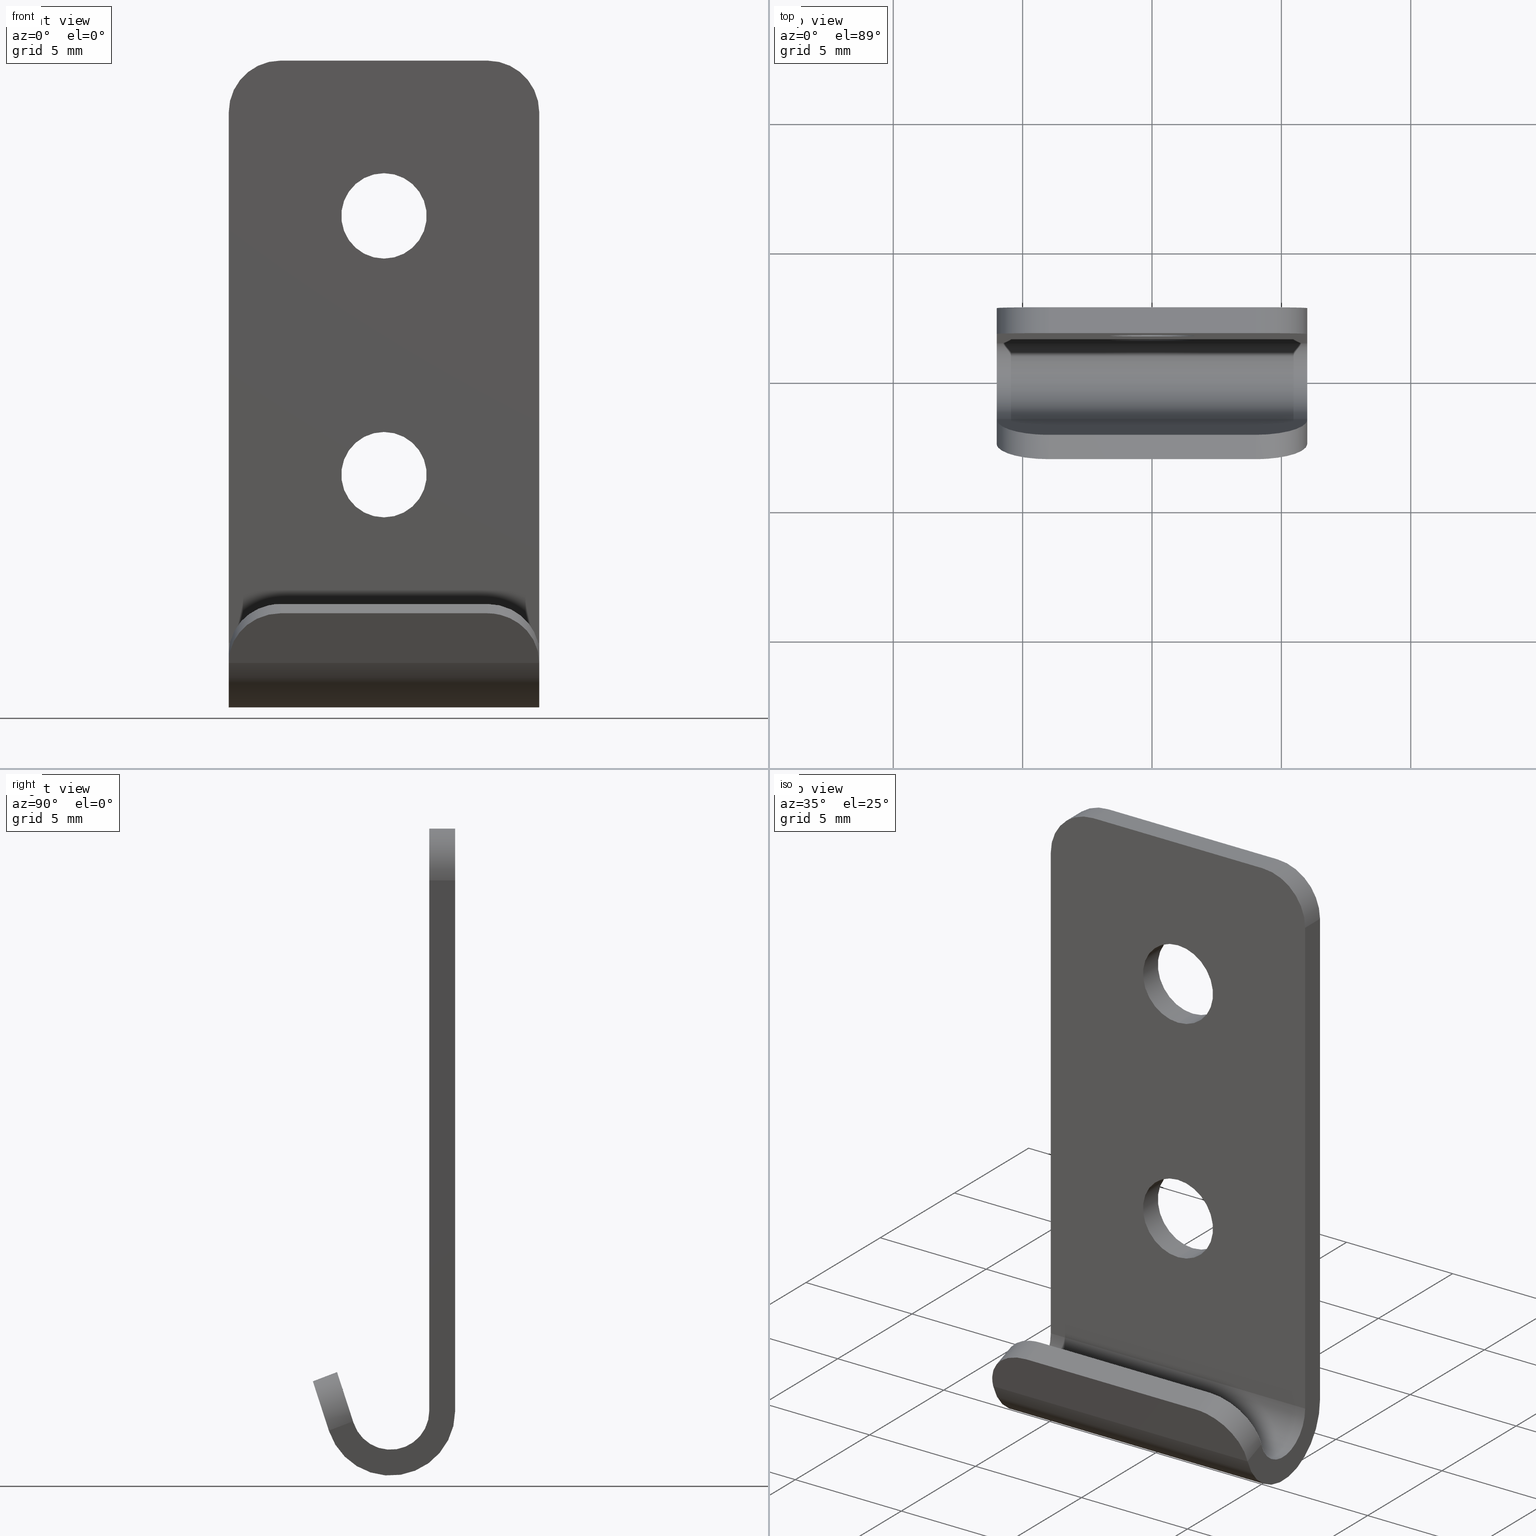
[diagram: canonical four-view strip — front | top / right | iso, engineering-drawing reading convention]
A machine part, canonical four-view strip (front | top / right | iso — engineering-drawing reading convention). The complete STEP part file that produces these views, byte-faithful:
ISO-10303-21;
HEADER;

FILE_DESCRIPTION( (''), '2;1');
FILE_NAME ('PC3117.7224.TL_446SUS_K_22877.stp','2025-12-12T13:10:36',(''),(''),'spGate 20.6.3 (****-****-****-****)','','');

FILE_SCHEMA (('AUTOMOTIVE_DESIGN'));
ENDSEC;

DATA;
#10=(GEOMETRIC_REPRESENTATION_CONTEXT(3) GLOBAL_UNCERTAINTY_ASSIGNED_CONTEXT((#11)) GLOBAL_UNIT_ASSIGNED_CONTEXT((#12,#13,#14)) REPRESENTATION_CONTEXT('ID1','3D'));
#11=UNCERTAINTY_MEASURE_WITH_UNIT(LENGTH_MEASURE(0.01),#15,'DISTANCE_ACCURACY_VALUE','Maximum model space distance between geometric entities at asserted connectivities');
#12=(NAMED_UNIT(*) SI_UNIT($,.STERADIAN.) SOLID_ANGLE_UNIT());
#13=(CONVERSION_BASED_UNIT('DEGREE',#16) NAMED_UNIT(#17) PLANE_ANGLE_UNIT());
#14=(LENGTH_UNIT() NAMED_UNIT(*) SI_UNIT(.MILLI.,.METRE.));
#15=(LENGTH_UNIT() NAMED_UNIT(*) SI_UNIT(.MILLI.,.METRE.));
#16=PLANE_ANGLE_MEASURE_WITH_UNIT(PLANE_ANGLE_MEASURE(0.01745329252),#18);
#17=DIMENSIONAL_EXPONENTS(0.0,0.0,0.0,0.0,0.0,0.0,0.0);
#18=(NAMED_UNIT(*) PLANE_ANGLE_UNIT() SI_UNIT($,.RADIAN.));
#19=MANIFOLD_SOLID_BREP('TL_446SUS_K',#31);
#20=ADVANCED_BREP_SHAPE_REPRESENTATION('',(#19),#10);
#21=APPLICATION_CONTEXT('');
#22=APPLICATION_PROTOCOL_DEFINITION('International Standard','automotive_design',1999,#21);
#23=PRODUCT_DEFINITION_CONTEXT('',#21,'design');
#24=PRODUCT_CONTEXT('',#21,'mechanical');
#25=PRODUCT('','','',(#24));
#26=PRODUCT_DEFINITION_FORMATION_WITH_SPECIFIED_SOURCE('','',#25,.NOT_KNOWN.);
#27=PRODUCT_RELATED_PRODUCT_CATEGORY('tool','tool',(#25));
#28=PRODUCT_DEFINITION('','',#26,#23);
#29=PRODUCT_DEFINITION_SHAPE('','',#28);
#30=SHAPE_DEFINITION_REPRESENTATION(#29,#20);
#31=CLOSED_SHELL('',(#40,#41,#42,#43,#44,#45,#46,#47,#48,#49,#50,#51,#52,#53,#54,#55,#56,#57));
#32=COLOUR_RGB('',0.00000000000E+00,0.00000000000E+00,0.00000000000E+00);
#33=FILL_AREA_STYLE_COLOUR('',#32);
#34=FILL_AREA_STYLE('',(#33));
#35=SURFACE_STYLE_FILL_AREA(#34);
#36=SURFACE_SIDE_STYLE('',(#35));
#37=SURFACE_STYLE_USAGE(.BOTH.,#36);
#38=PRESENTATION_STYLE_ASSIGNMENT((#37));
#39=STYLED_ITEM('',(#38),#19);
#40=ADVANCED_FACE('',(#59),#58,.T.);
#41=ADVANCED_FACE('',(#69),#68,.T.);
#42=ADVANCED_FACE('',(#79),#78,.F.);
#43=ADVANCED_FACE('',(#89),#88,.F.);
#44=ADVANCED_FACE('',(#99),#98,.F.);
#45=ADVANCED_FACE('',(#109),#108,.T.);
#46=ADVANCED_FACE('',(#119),#118,.F.);
#47=ADVANCED_FACE('',(#129),#128,.F.);
#48=ADVANCED_FACE('',(#139,#140,#141),#138,.F.);
#49=ADVANCED_FACE('',(#151),#150,.F.);
#50=ADVANCED_FACE('',(#161,#162,#163),#160,.F.);
#51=ADVANCED_FACE('',(#173),#172,.T.);
#52=ADVANCED_FACE('',(#183),#182,.T.);
#53=ADVANCED_FACE('',(#193),#192,.T.);
#54=ADVANCED_FACE('',(#203),#202,.F.);
#55=ADVANCED_FACE('',(#213),#212,.F.);
#56=ADVANCED_FACE('',(#223),#222,.F.);
#57=ADVANCED_FACE('',(#233),#232,.F.);
#58=CYLINDRICAL_SURFACE('',#245,2.00000000000E+00);
#59=FACE_OUTER_BOUND('',#246,.T.);
#60=COLOUR_RGB('',1.00000000000E+00,1.00000000000E+00,1.00000000000E+00);
#61=FILL_AREA_STYLE_COLOUR('',#60);
#62=FILL_AREA_STYLE('',(#61));
#63=SURFACE_STYLE_FILL_AREA(#62);
#64=SURFACE_SIDE_STYLE('',(#63));
#65=SURFACE_STYLE_USAGE(.BOTH.,#64);
#66=PRESENTATION_STYLE_ASSIGNMENT((#65));
#67=STYLED_ITEM('',(#66),#40);
#68=CYLINDRICAL_SURFACE('',#250,2.00000000000E+00);
#69=FACE_OUTER_BOUND('',#251,.T.);
#70=COLOUR_RGB('',1.00000000000E+00,1.00000000000E+00,1.00000000000E+00);
#71=FILL_AREA_STYLE_COLOUR('',#70);
#72=FILL_AREA_STYLE('',(#71));
#73=SURFACE_STYLE_FILL_AREA(#72);
#74=SURFACE_SIDE_STYLE('',(#73));
#75=SURFACE_STYLE_USAGE(.BOTH.,#74);
#76=PRESENTATION_STYLE_ASSIGNMENT((#75));
#77=STYLED_ITEM('',(#76),#41);
#78=PLANE('',#255);
#79=FACE_OUTER_BOUND('',#256,.T.);
#80=COLOUR_RGB('',1.00000000000E+00,1.00000000000E+00,1.00000000000E+00);
#81=FILL_AREA_STYLE_COLOUR('',#80);
#82=FILL_AREA_STYLE('',(#81));
#83=SURFACE_STYLE_FILL_AREA(#82);
#84=SURFACE_SIDE_STYLE('',(#83));
#85=SURFACE_STYLE_USAGE(.BOTH.,#84);
#86=PRESENTATION_STYLE_ASSIGNMENT((#85));
#87=STYLED_ITEM('',(#86),#42);
#88=PLANE('',#260);
#89=FACE_OUTER_BOUND('',#261,.T.);
#90=COLOUR_RGB('',1.00000000000E+00,1.00000000000E+00,1.00000000000E+00);
#91=FILL_AREA_STYLE_COLOUR('',#90);
#92=FILL_AREA_STYLE('',(#91));
#93=SURFACE_STYLE_FILL_AREA(#92);
#94=SURFACE_SIDE_STYLE('',(#93));
#95=SURFACE_STYLE_USAGE(.BOTH.,#94);
#96=PRESENTATION_STYLE_ASSIGNMENT((#95));
#97=STYLED_ITEM('',(#96),#43);
#98=PLANE('',#265);
#99=FACE_OUTER_BOUND('',#266,.T.);
#100=COLOUR_RGB('',1.00000000000E+00,1.00000000000E+00,1.00000000000E+00);
#101=FILL_AREA_STYLE_COLOUR('',#100);
#102=FILL_AREA_STYLE('',(#101));
#103=SURFACE_STYLE_FILL_AREA(#102);
#104=SURFACE_SIDE_STYLE('',(#103));
#105=SURFACE_STYLE_USAGE(.BOTH.,#104);
#106=PRESENTATION_STYLE_ASSIGNMENT((#105));
#107=STYLED_ITEM('',(#106),#44);
#108=PLANE('',#270);
#109=FACE_OUTER_BOUND('',#271,.T.);
#110=COLOUR_RGB('',1.00000000000E+00,1.00000000000E+00,1.00000000000E+00);
#111=FILL_AREA_STYLE_COLOUR('',#110);
#112=FILL_AREA_STYLE('',(#111));
#113=SURFACE_STYLE_FILL_AREA(#112);
#114=SURFACE_SIDE_STYLE('',(#113));
#115=SURFACE_STYLE_USAGE(.BOTH.,#114);
#116=PRESENTATION_STYLE_ASSIGNMENT((#115));
#117=STYLED_ITEM('',(#116),#45);
#118=PLANE('',#275);
#119=FACE_OUTER_BOUND('',#276,.T.);
#120=COLOUR_RGB('',1.00000000000E+00,1.00000000000E+00,1.00000000000E+00);
#121=FILL_AREA_STYLE_COLOUR('',#120);
#122=FILL_AREA_STYLE('',(#121));
#123=SURFACE_STYLE_FILL_AREA(#122);
#124=SURFACE_SIDE_STYLE('',(#123));
#125=SURFACE_STYLE_USAGE(.BOTH.,#124);
#126=PRESENTATION_STYLE_ASSIGNMENT((#125));
#127=STYLED_ITEM('',(#126),#46);
#128=CYLINDRICAL_SURFACE('',#280,1.50000000000E+00);
#129=FACE_OUTER_BOUND('',#281,.T.);
#130=COLOUR_RGB('',1.00000000000E+00,1.00000000000E+00,1.00000000000E+00);
#131=FILL_AREA_STYLE_COLOUR('',#130);
#132=FILL_AREA_STYLE('',(#131));
#133=SURFACE_STYLE_FILL_AREA(#132);
#134=SURFACE_SIDE_STYLE('',(#133));
#135=SURFACE_STYLE_USAGE(.BOTH.,#134);
#136=PRESENTATION_STYLE_ASSIGNMENT((#135));
#137=STYLED_ITEM('',(#136),#47);
#138=PLANE('',#285);
#139=FACE_OUTER_BOUND('',#286,.T.);
#140=FACE_BOUND('',#287,.T.);
#141=FACE_BOUND('',#288,.T.);
#142=COLOUR_RGB('',1.00000000000E+00,1.00000000000E+00,1.00000000000E+00);
#143=FILL_AREA_STYLE_COLOUR('',#142);
#144=FILL_AREA_STYLE('',(#143));
#145=SURFACE_STYLE_FILL_AREA(#144);
#146=SURFACE_SIDE_STYLE('',(#145));
#147=SURFACE_STYLE_USAGE(.BOTH.,#146);
#148=PRESENTATION_STYLE_ASSIGNMENT((#147));
#149=STYLED_ITEM('',(#148),#48);
#150=PLANE('',#292);
#151=FACE_OUTER_BOUND('',#293,.T.);
#152=COLOUR_RGB('',1.00000000000E+00,1.00000000000E+00,1.00000000000E+00);
#153=FILL_AREA_STYLE_COLOUR('',#152);
#154=FILL_AREA_STYLE('',(#153));
#155=SURFACE_STYLE_FILL_AREA(#154);
#156=SURFACE_SIDE_STYLE('',(#155));
#157=SURFACE_STYLE_USAGE(.BOTH.,#156);
#158=PRESENTATION_STYLE_ASSIGNMENT((#157));
#159=STYLED_ITEM('',(#158),#49);
#160=PLANE('',#297);
#161=FACE_OUTER_BOUND('',#298,.T.);
#162=FACE_BOUND('',#299,.T.);
#163=FACE_BOUND('',#300,.T.);
#164=COLOUR_RGB('',1.00000000000E+00,1.00000000000E+00,1.00000000000E+00);
#165=FILL_AREA_STYLE_COLOUR('',#164);
#166=FILL_AREA_STYLE('',(#165));
#167=SURFACE_STYLE_FILL_AREA(#166);
#168=SURFACE_SIDE_STYLE('',(#167));
#169=SURFACE_STYLE_USAGE(.BOTH.,#168);
#170=PRESENTATION_STYLE_ASSIGNMENT((#169));
#171=STYLED_ITEM('',(#170),#50);
#172=CYLINDRICAL_SURFACE('',#304,2.50000000000E+00);
#173=FACE_OUTER_BOUND('',#305,.T.);
#174=COLOUR_RGB('',1.00000000000E+00,1.00000000000E+00,1.00000000000E+00);
#175=FILL_AREA_STYLE_COLOUR('',#174);
#176=FILL_AREA_STYLE('',(#175));
#177=SURFACE_STYLE_FILL_AREA(#176);
#178=SURFACE_SIDE_STYLE('',(#177));
#179=SURFACE_STYLE_USAGE(.BOTH.,#178);
#180=PRESENTATION_STYLE_ASSIGNMENT((#179));
#181=STYLED_ITEM('',(#180),#51);
#182=CYLINDRICAL_SURFACE('',#309,2.00000000000E+00);
#183=FACE_OUTER_BOUND('',#310,.T.);
#184=COLOUR_RGB('',1.00000000000E+00,1.00000000000E+00,1.00000000000E+00);
#185=FILL_AREA_STYLE_COLOUR('',#184);
#186=FILL_AREA_STYLE('',(#185));
#187=SURFACE_STYLE_FILL_AREA(#186);
#188=SURFACE_SIDE_STYLE('',(#187));
#189=SURFACE_STYLE_USAGE(.BOTH.,#188);
#190=PRESENTATION_STYLE_ASSIGNMENT((#189));
#191=STYLED_ITEM('',(#190),#52);
#192=CYLINDRICAL_SURFACE('',#314,2.00000000000E+00);
#193=FACE_OUTER_BOUND('',#315,.T.);
#194=COLOUR_RGB('',1.00000000000E+00,1.00000000000E+00,1.00000000000E+00);
#195=FILL_AREA_STYLE_COLOUR('',#194);
#196=FILL_AREA_STYLE('',(#195));
#197=SURFACE_STYLE_FILL_AREA(#196);
#198=SURFACE_SIDE_STYLE('',(#197));
#199=SURFACE_STYLE_USAGE(.BOTH.,#198);
#200=PRESENTATION_STYLE_ASSIGNMENT((#199));
#201=STYLED_ITEM('',(#200),#53);
#202=CYLINDRICAL_SURFACE('',#319,1.65000000000E+00);
#203=FACE_OUTER_BOUND('',#320,.T.);
#204=COLOUR_RGB('',1.00000000000E+00,1.00000000000E+00,1.00000000000E+00);
#205=FILL_AREA_STYLE_COLOUR('',#204);
#206=FILL_AREA_STYLE('',(#205));
#207=SURFACE_STYLE_FILL_AREA(#206);
#208=SURFACE_SIDE_STYLE('',(#207));
#209=SURFACE_STYLE_USAGE(.BOTH.,#208);
#210=PRESENTATION_STYLE_ASSIGNMENT((#209));
#211=STYLED_ITEM('',(#210),#54);
#212=CYLINDRICAL_SURFACE('',#324,1.65000000000E+00);
#213=FACE_OUTER_BOUND('',#325,.T.);
#214=COLOUR_RGB('',1.00000000000E+00,1.00000000000E+00,1.00000000000E+00);
#215=FILL_AREA_STYLE_COLOUR('',#214);
#216=FILL_AREA_STYLE('',(#215));
#217=SURFACE_STYLE_FILL_AREA(#216);
#218=SURFACE_SIDE_STYLE('',(#217));
#219=SURFACE_STYLE_USAGE(.BOTH.,#218);
#220=PRESENTATION_STYLE_ASSIGNMENT((#219));
#221=STYLED_ITEM('',(#220),#55);
#222=CYLINDRICAL_SURFACE('',#329,1.65000000000E+00);
#223=FACE_OUTER_BOUND('',#330,.T.);
#224=COLOUR_RGB('',1.00000000000E+00,1.00000000000E+00,1.00000000000E+00);
#225=FILL_AREA_STYLE_COLOUR('',#224);
#226=FILL_AREA_STYLE('',(#225));
#227=SURFACE_STYLE_FILL_AREA(#226);
#228=SURFACE_SIDE_STYLE('',(#227));
#229=SURFACE_STYLE_USAGE(.BOTH.,#228);
#230=PRESENTATION_STYLE_ASSIGNMENT((#229));
#231=STYLED_ITEM('',(#230),#56);
#232=CYLINDRICAL_SURFACE('',#334,1.65000000000E+00);
#233=FACE_OUTER_BOUND('',#335,.T.);
#234=COLOUR_RGB('',1.00000000000E+00,1.00000000000E+00,1.00000000000E+00);
#235=FILL_AREA_STYLE_COLOUR('',#234);
#236=FILL_AREA_STYLE('',(#235));
#237=SURFACE_STYLE_FILL_AREA(#236);
#238=SURFACE_SIDE_STYLE('',(#237));
#239=SURFACE_STYLE_USAGE(.BOTH.,#238);
#240=PRESENTATION_STYLE_ASSIGNMENT((#239));
#241=STYLED_ITEM('',(#240),#57);
#242=CARTESIAN_POINT('',(-4.00000000000E+00,-1.35124601885E+00,2.13153410838E+00));
#243=DIRECTION('',(-0.00000000000E+00,9.34232945811E-01,3.56663430928E-01));
#244=DIRECTION('',(-0.00000000000E+00,-3.56663430928E-01,9.34232945811E-01));
#245=AXIS2_PLACEMENT_3D('',#242,#243,#244);
#246=EDGE_LOOP('',(#336,#337,#338,#339));
#247=CARTESIAN_POINT('',(4.00000000000E+00,-8.82131893880E-01,2.31062847029E+00));
#248=DIRECTION('',(-0.00000000000E+00,-9.34232945811E-01,-3.56663430928E-01));
#249=DIRECTION('',(-0.00000000000E+00,3.56663430928E-01,-9.34232945811E-01));
#250=AXIS2_PLACEMENT_3D('',#247,#248,#249);
#251=EDGE_LOOP('',(#340,#341,#342,#343));
#252=CARTESIAN_POINT('',(-6.00000000000E+00,-2.86929361735E+00,2.53303239989E+01));
#253=DIRECTION('',(1.00000000000E+00,0.00000000000E+00,-0.00000000000E+00));
#254=DIRECTION('',(-0.00000000000E+00,0.00000000000E+00,-1.00000000000E+00));
#255=AXIS2_PLACEMENT_3D('',#252,#253,#254);
#256=EDGE_LOOP('',(#344,#345,#346,#347,#348,#349,#350,#351));
#257=CARTESIAN_POINT('',(-4.80000000000E+00,-3.09354271193E+00,3.60716873455E+00));
#258=DIRECTION('',(0.00000000000E+00,3.56663430928E-01,-9.34232945811E-01));
#259=DIRECTION('',(0.00000000000E+00,9.34232945811E-01,3.56663430928E-01));
#260=AXIS2_PLACEMENT_3D('',#257,#258,#259);
#261=EDGE_LOOP('',(#352,#353,#354,#355));
#262=CARTESIAN_POINT('',(-7.20000000000E+00,-2.31540541981E+00,1.53591519869E+00));
#263=DIRECTION('',(-0.00000000000E+00,9.51056516295E-01,3.09016994375E-01));
#264=DIRECTION('',(0.00000000000E+00,-3.09016994375E-01,9.51056516295E-01));
#265=AXIS2_PLACEMENT_3D('',#262,#263,#264);
#266=EDGE_LOOP('',(#356,#357,#358,#359,#360,#361));
#267=CARTESIAN_POINT('',(6.00000000000E+00,-2.86929361735E+00,2.53303239989E+01));
#268=DIRECTION('',(1.00000000000E+00,0.00000000000E+00,-0.00000000000E+00));
#269=DIRECTION('',(-0.00000000000E+00,0.00000000000E+00,-1.00000000000E+00));
#270=AXIS2_PLACEMENT_3D('',#267,#268,#269);
#271=EDGE_LOOP('',(#362,#363,#364,#365,#366,#367,#368,#369));
#272=CARTESIAN_POINT('',(-7.20000000000E+00,-2.12837169133E+00,4.19635254916E+00));
#273=DIRECTION('',(0.00000000000E+00,-9.51056516295E-01,-3.09016994375E-01));
#274=DIRECTION('',(0.00000000000E+00,3.09016994375E-01,-9.51056516295E-01));
#275=AXIS2_PLACEMENT_3D('',#272,#273,#274);
#276=EDGE_LOOP('',(#370,#371,#372,#373,#374,#375));
#277=CARTESIAN_POINT('',(9.94000000000E+02,0.00000000000E+00,2.50000000000E+00));
#278=DIRECTION('',(1.00000000000E+00,-0.00000000000E+00,-0.00000000000E+00));
#279=DIRECTION('',(0.00000000000E+00,-1.56434465040E-01,9.87688340595E-01));
#280=AXIS2_PLACEMENT_3D('',#277,#278,#279);
#281=EDGE_LOOP('',(#376,#377,#378,#379));
#282=CARTESIAN_POINT('',(-7.20000000000E+00,1.50000000000E+00,2.50000000000E-01));
#283=DIRECTION('',(0.00000000000E+00,1.00000000000E+00,-6.26427921881E-16));
#284=DIRECTION('',(0.00000000000E+00,6.26427921881E-16,1.00000000000E+00));
#285=AXIS2_PLACEMENT_3D('',#282,#283,#284);
#286=EDGE_LOOP('',(#380,#381,#382,#383,#384,#385));
#287=EDGE_LOOP('',(#386,#387));
#288=EDGE_LOOP('',(#388,#389));
#289=CARTESIAN_POINT('',(4.80000000000E+00,1.40000000000E+00,2.50000000000E+01));
#290=DIRECTION('',(0.00000000000E+00,0.00000000000E+00,-1.00000000000E+00));
#291=DIRECTION('',(-1.00000000000E+00,0.00000000000E+00,0.00000000000E+00));
#292=AXIS2_PLACEMENT_3D('',#289,#290,#291);
#293=EDGE_LOOP('',(#390,#391,#392,#393));
#294=CARTESIAN_POINT('',(-7.20000000000E+00,2.50000000000E+00,2.72500000000E+01));
#295=DIRECTION('',(0.00000000000E+00,-1.00000000000E+00,6.36065274525E-16));
#296=DIRECTION('',(0.00000000000E+00,-6.36065274525E-16,-1.00000000000E+00));
#297=AXIS2_PLACEMENT_3D('',#294,#295,#296);
#298=EDGE_LOOP('',(#394,#395,#396,#397,#398,#399));
#299=EDGE_LOOP('',(#400,#401));
#300=EDGE_LOOP('',(#402,#403));
#301=CARTESIAN_POINT('',(9.94000000000E+02,0.00000000000E+00,2.50000000000E+00));
#302=DIRECTION('',(1.00000000000E+00,-0.00000000000E+00,-0.00000000000E+00));
#303=DIRECTION('',(0.00000000000E+00,-1.47809411130E-01,9.89015863362E-01));
#304=AXIS2_PLACEMENT_3D('',#301,#302,#303);
#305=EDGE_LOOP('',(#404,#405,#406,#407));
#306=CARTESIAN_POINT('',(4.00000000000E+00,0.00000000000E+00,2.30000000000E+01));
#307=DIRECTION('',(-0.00000000000E+00,-1.00000000000E+00,-0.00000000000E+00));
#308=DIRECTION('',(-0.00000000000E+00,0.00000000000E+00,-1.00000000000E+00));
#309=AXIS2_PLACEMENT_3D('',#306,#307,#308);
#310=EDGE_LOOP('',(#408,#409,#410,#411));
#311=CARTESIAN_POINT('',(-4.00000000000E+00,2.50000000000E+00,2.30000000000E+01));
#312=DIRECTION('',(-0.00000000000E+00,1.00000000000E+00,-0.00000000000E+00));
#313=DIRECTION('',(-0.00000000000E+00,-0.00000000000E+00,1.00000000000E+00));
#314=AXIS2_PLACEMENT_3D('',#311,#312,#313);
#315=EDGE_LOOP('',(#412,#413,#414,#415));
#316=CARTESIAN_POINT('',(0.00000000000E+00,1.00150000000E+03,1.90000000000E+01));
#317=DIRECTION('',(-0.00000000000E+00,1.00000000000E+00,0.00000000000E+00));
#318=DIRECTION('',(1.22464679915E-16,0.00000000000E+00,-1.00000000000E+00));
#319=AXIS2_PLACEMENT_3D('',#316,#317,#318);
#320=EDGE_LOOP('',(#416,#417,#418,#419));
#321=CARTESIAN_POINT('',(0.00000000000E+00,1.00150000000E+03,1.90000000000E+01));
#322=DIRECTION('',(-0.00000000000E+00,1.00000000000E+00,0.00000000000E+00));
#323=DIRECTION('',(1.22464679915E-16,0.00000000000E+00,-1.00000000000E+00));
#324=AXIS2_PLACEMENT_3D('',#321,#322,#323);
#325=EDGE_LOOP('',(#420,#421,#422,#423));
#326=CARTESIAN_POINT('',(0.00000000000E+00,1.00150000000E+03,9.00000000000E+00));
#327=DIRECTION('',(-0.00000000000E+00,1.00000000000E+00,0.00000000000E+00));
#328=DIRECTION('',(1.22464679915E-16,0.00000000000E+00,-1.00000000000E+00));
#329=AXIS2_PLACEMENT_3D('',#326,#327,#328);
#330=EDGE_LOOP('',(#424,#425,#426,#427));
#331=CARTESIAN_POINT('',(0.00000000000E+00,1.00150000000E+03,9.00000000000E+00));
#332=DIRECTION('',(-0.00000000000E+00,1.00000000000E+00,0.00000000000E+00));
#333=DIRECTION('',(1.22464679915E-16,0.00000000000E+00,-1.00000000000E+00));
#334=AXIS2_PLACEMENT_3D('',#331,#332,#333);
#335=EDGE_LOOP('',(#428,#429,#430,#431));
#336=ORIENTED_EDGE('',*,*,#432,.F.);
#337=ORIENTED_EDGE('',*,*,#433,.F.);
#338=ORIENTED_EDGE('',*,*,#434,.F.);
#339=ORIENTED_EDGE('',*,*,#435,.F.);
#340=ORIENTED_EDGE('',*,*,#436,.F.);
#341=ORIENTED_EDGE('',*,*,#437,.F.);
#342=ORIENTED_EDGE('',*,*,#438,.F.);
#343=ORIENTED_EDGE('',*,*,#439,.F.);
#344=ORIENTED_EDGE('',*,*,#440,.F.);
#345=ORIENTED_EDGE('',*,*,#433,.T.);
#346=ORIENTED_EDGE('',*,*,#441,.F.);
#347=ORIENTED_EDGE('',*,*,#442,.F.);
#348=ORIENTED_EDGE('',*,*,#443,.F.);
#349=ORIENTED_EDGE('',*,*,#444,.T.);
#350=ORIENTED_EDGE('',*,*,#445,.F.);
#351=ORIENTED_EDGE('',*,*,#446,.T.);
#352=ORIENTED_EDGE('',*,*,#447,.T.);
#353=ORIENTED_EDGE('',*,*,#435,.T.);
#354=ORIENTED_EDGE('',*,*,#448,.F.);
#355=ORIENTED_EDGE('',*,*,#437,.T.);
#356=ORIENTED_EDGE('',*,*,#448,.T.);
#357=ORIENTED_EDGE('',*,*,#434,.T.);
#358=ORIENTED_EDGE('',*,*,#440,.T.);
#359=ORIENTED_EDGE('',*,*,#449,.F.);
#360=ORIENTED_EDGE('',*,*,#450,.F.);
#361=ORIENTED_EDGE('',*,*,#438,.T.);
#362=ORIENTED_EDGE('',*,*,#451,.T.);
#363=ORIENTED_EDGE('',*,*,#439,.T.);
#364=ORIENTED_EDGE('',*,*,#450,.T.);
#365=ORIENTED_EDGE('',*,*,#452,.F.);
#366=ORIENTED_EDGE('',*,*,#453,.T.);
#367=ORIENTED_EDGE('',*,*,#454,.T.);
#368=ORIENTED_EDGE('',*,*,#455,.T.);
#369=ORIENTED_EDGE('',*,*,#456,.T.);
#370=ORIENTED_EDGE('',*,*,#441,.T.);
#371=ORIENTED_EDGE('',*,*,#432,.T.);
#372=ORIENTED_EDGE('',*,*,#447,.F.);
#373=ORIENTED_EDGE('',*,*,#436,.T.);
#374=ORIENTED_EDGE('',*,*,#451,.F.);
#375=ORIENTED_EDGE('',*,*,#457,.T.);
#376=ORIENTED_EDGE('',*,*,#442,.T.);
#377=ORIENTED_EDGE('',*,*,#457,.F.);
#378=ORIENTED_EDGE('',*,*,#456,.F.);
#379=ORIENTED_EDGE('',*,*,#458,.T.);
#380=ORIENTED_EDGE('',*,*,#459,.T.);
#381=ORIENTED_EDGE('',*,*,#460,.T.);
#382=ORIENTED_EDGE('',*,*,#443,.T.);
#383=ORIENTED_EDGE('',*,*,#458,.F.);
#384=ORIENTED_EDGE('',*,*,#455,.F.);
#385=ORIENTED_EDGE('',*,*,#461,.T.);
#386=ORIENTED_EDGE('',*,*,#462,.F.);
#387=ORIENTED_EDGE('',*,*,#463,.F.);
#388=ORIENTED_EDGE('',*,*,#464,.F.);
#389=ORIENTED_EDGE('',*,*,#465,.F.);
#390=ORIENTED_EDGE('',*,*,#466,.T.);
#391=ORIENTED_EDGE('',*,*,#467,.T.);
#392=ORIENTED_EDGE('',*,*,#459,.F.);
#393=ORIENTED_EDGE('',*,*,#468,.T.);
#394=ORIENTED_EDGE('',*,*,#445,.T.);
#395=ORIENTED_EDGE('',*,*,#469,.T.);
#396=ORIENTED_EDGE('',*,*,#466,.F.);
#397=ORIENTED_EDGE('',*,*,#470,.T.);
#398=ORIENTED_EDGE('',*,*,#453,.F.);
#399=ORIENTED_EDGE('',*,*,#471,.T.);
#400=ORIENTED_EDGE('',*,*,#472,.T.);
#401=ORIENTED_EDGE('',*,*,#473,.T.);
#402=ORIENTED_EDGE('',*,*,#474,.T.);
#403=ORIENTED_EDGE('',*,*,#475,.T.);
#404=ORIENTED_EDGE('',*,*,#446,.F.);
#405=ORIENTED_EDGE('',*,*,#471,.F.);
#406=ORIENTED_EDGE('',*,*,#452,.T.);
#407=ORIENTED_EDGE('',*,*,#449,.T.);
#408=ORIENTED_EDGE('',*,*,#470,.F.);
#409=ORIENTED_EDGE('',*,*,#468,.F.);
#410=ORIENTED_EDGE('',*,*,#461,.F.);
#411=ORIENTED_EDGE('',*,*,#454,.F.);
#412=ORIENTED_EDGE('',*,*,#469,.F.);
#413=ORIENTED_EDGE('',*,*,#444,.F.);
#414=ORIENTED_EDGE('',*,*,#460,.F.);
#415=ORIENTED_EDGE('',*,*,#467,.F.);
#416=ORIENTED_EDGE('',*,*,#463,.T.);
#417=ORIENTED_EDGE('',*,*,#476,.T.);
#418=ORIENTED_EDGE('',*,*,#472,.F.);
#419=ORIENTED_EDGE('',*,*,#477,.F.);
#420=ORIENTED_EDGE('',*,*,#473,.F.);
#421=ORIENTED_EDGE('',*,*,#476,.F.);
#422=ORIENTED_EDGE('',*,*,#462,.T.);
#423=ORIENTED_EDGE('',*,*,#477,.T.);
#424=ORIENTED_EDGE('',*,*,#465,.T.);
#425=ORIENTED_EDGE('',*,*,#478,.T.);
#426=ORIENTED_EDGE('',*,*,#474,.F.);
#427=ORIENTED_EDGE('',*,*,#479,.F.);
#428=ORIENTED_EDGE('',*,*,#475,.F.);
#429=ORIENTED_EDGE('',*,*,#478,.F.);
#430=ORIENTED_EDGE('',*,*,#464,.T.);
#431=ORIENTED_EDGE('',*,*,#479,.T.);
#432=EDGE_CURVE('',#480,#481,#482,.T.);
#433=EDGE_CURVE('',#488,#480,#489,.T.);
#434=EDGE_CURVE('',#495,#488,#496,.T.);
#435=EDGE_CURVE('',#481,#495,#502,.T.);
#436=EDGE_CURVE('',#508,#509,#510,.T.);
#437=EDGE_CURVE('',#516,#508,#517,.T.);
#438=EDGE_CURVE('',#523,#516,#524,.T.);
#439=EDGE_CURVE('',#509,#523,#530,.T.);
#440=EDGE_CURVE('',#488,#536,#537,.T.);
#441=EDGE_CURVE('',#543,#480,#544,.T.);
#442=EDGE_CURVE('',#550,#543,#551,.T.);
#443=EDGE_CURVE('',#557,#550,#558,.T.);
#444=EDGE_CURVE('',#557,#564,#565,.T.);
#445=EDGE_CURVE('',#571,#564,#572,.T.);
#446=EDGE_CURVE('',#571,#536,#578,.T.);
#447=EDGE_CURVE('',#508,#481,#584,.T.);
#448=EDGE_CURVE('',#516,#495,#590,.T.);
#449=EDGE_CURVE('',#596,#536,#597,.T.);
#450=EDGE_CURVE('',#523,#596,#603,.T.);
#451=EDGE_CURVE('',#609,#509,#610,.T.);
#452=EDGE_CURVE('',#616,#596,#617,.T.);
#453=EDGE_CURVE('',#616,#623,#624,.T.);
#454=EDGE_CURVE('',#623,#630,#631,.T.);
#455=EDGE_CURVE('',#630,#637,#638,.T.);
#456=EDGE_CURVE('',#637,#609,#644,.T.);
#457=EDGE_CURVE('',#609,#543,#650,.T.);
#458=EDGE_CURVE('',#637,#550,#656,.T.);
#459=EDGE_CURVE('',#662,#663,#664,.T.);
#460=EDGE_CURVE('',#663,#557,#670,.T.);
#461=EDGE_CURVE('',#630,#662,#676,.T.);
#462=EDGE_CURVE('',#682,#683,#684,.T.);
#463=EDGE_CURVE('',#683,#682,#690,.T.);
#464=EDGE_CURVE('',#696,#697,#698,.T.);
#465=EDGE_CURVE('',#697,#696,#704,.T.);
#466=EDGE_CURVE('',#710,#711,#712,.T.);
#467=EDGE_CURVE('',#711,#663,#718,.T.);
#468=EDGE_CURVE('',#662,#710,#724,.T.);
#469=EDGE_CURVE('',#564,#711,#730,.T.);
#470=EDGE_CURVE('',#710,#623,#736,.T.);
#471=EDGE_CURVE('',#616,#571,#742,.T.);
#472=EDGE_CURVE('',#748,#749,#750,.T.);
#473=EDGE_CURVE('',#749,#748,#756,.T.);
#474=EDGE_CURVE('',#762,#763,#764,.T.);
#475=EDGE_CURVE('',#763,#762,#770,.T.);
#476=EDGE_CURVE('',#682,#749,#776,.T.);
#477=EDGE_CURVE('',#683,#748,#782,.T.);
#478=EDGE_CURVE('',#696,#763,#788,.T.);
#479=EDGE_CURVE('',#697,#762,#794,.T.);
#480=VERTEX_POINT('',#800);
#481=VERTEX_POINT('',#801);
#482=(BOUNDED_CURVE() B_SPLINE_CURVE(2,(#802,#803,#804),.UNSPECIFIED.,.F.,.F.) B_SPLINE_CURVE_WITH_KNOTS((3,3),(-4.71238898038E+00,-3.14159265359E+00),.UNSPECIFIED.) CURVE() GEOMETRIC_REPRESENTATION_ITEM() RATIONAL_B_SPLINE_CURVE((1.00000000000E+00,7.07106781187E-01,1.00000000000E+00)) REPRESENTATION_ITEM('') );
#483=COLOUR_RGB('',1.00000000000E+00,1.00000000000E+00,1.00000000000E+00);
#484=DRAUGHTING_PRE_DEFINED_CURVE_FONT('continuous');
#485=CURVE_STYLE( '',#484, POSITIVE_LENGTH_MEASURE(1.00000000000E-06),#483);
#486=PRESENTATION_STYLE_ASSIGNMENT((#485));
#487=STYLED_ITEM('',(#486),#432);
#488=VERTEX_POINT('',#805);
#489=LINE('',#806,#807);
#490=COLOUR_RGB('',1.00000000000E+00,1.00000000000E+00,1.00000000000E+00);
#491=DRAUGHTING_PRE_DEFINED_CURVE_FONT('continuous');
#492=CURVE_STYLE( '',#491, POSITIVE_LENGTH_MEASURE(1.00000000000E-06),#490);
#493=PRESENTATION_STYLE_ASSIGNMENT((#492));
#494=STYLED_ITEM('',(#493),#433);
#495=VERTEX_POINT('',#809);
#496=(BOUNDED_CURVE() B_SPLINE_CURVE(2,(#810,#811,#812),.UNSPECIFIED.,.F.,.F.) B_SPLINE_CURVE_WITH_KNOTS((3,3),(-3.14159265359E+00,-1.57079632679E+00),.UNSPECIFIED.) CURVE() GEOMETRIC_REPRESENTATION_ITEM() RATIONAL_B_SPLINE_CURVE((1.00000000000E+00,7.07106781187E-01,1.00000000000E+00)) REPRESENTATION_ITEM('') );
#497=COLOUR_RGB('',1.00000000000E+00,1.00000000000E+00,1.00000000000E+00);
#498=DRAUGHTING_PRE_DEFINED_CURVE_FONT('continuous');
#499=CURVE_STYLE( '',#498, POSITIVE_LENGTH_MEASURE(1.00000000000E-06),#497);
#500=PRESENTATION_STYLE_ASSIGNMENT((#499));
#501=STYLED_ITEM('',(#500),#434);
#502=LINE('',#813,#814);
#503=COLOUR_RGB('',1.00000000000E+00,1.00000000000E+00,1.00000000000E+00);
#504=DRAUGHTING_PRE_DEFINED_CURVE_FONT('continuous');
#505=CURVE_STYLE( '',#504, POSITIVE_LENGTH_MEASURE(1.00000000000E-06),#503);
#506=PRESENTATION_STYLE_ASSIGNMENT((#505));
#507=STYLED_ITEM('',(#506),#435);
#508=VERTEX_POINT('',#816);
#509=VERTEX_POINT('',#817);
#510=(BOUNDED_CURVE() B_SPLINE_CURVE(2,(#818,#819,#820),.UNSPECIFIED.,.F.,.F.) B_SPLINE_CURVE_WITH_KNOTS((3,3),(-6.28318530718E+00,-4.71238898038E+00),.UNSPECIFIED.) CURVE() GEOMETRIC_REPRESENTATION_ITEM() RATIONAL_B_SPLINE_CURVE((1.00000000000E+00,7.07106781187E-01,1.00000000000E+00)) REPRESENTATION_ITEM('') );
#511=COLOUR_RGB('',1.00000000000E+00,1.00000000000E+00,1.00000000000E+00);
#512=DRAUGHTING_PRE_DEFINED_CURVE_FONT('continuous');
#513=CURVE_STYLE( '',#512, POSITIVE_LENGTH_MEASURE(1.00000000000E-06),#511);
#514=PRESENTATION_STYLE_ASSIGNMENT((#513));
#515=STYLED_ITEM('',(#514),#436);
#516=VERTEX_POINT('',#821);
#517=LINE('',#822,#823);
#518=COLOUR_RGB('',1.00000000000E+00,1.00000000000E+00,1.00000000000E+00);
#519=DRAUGHTING_PRE_DEFINED_CURVE_FONT('continuous');
#520=CURVE_STYLE( '',#519, POSITIVE_LENGTH_MEASURE(1.00000000000E-06),#518);
#521=PRESENTATION_STYLE_ASSIGNMENT((#520));
#522=STYLED_ITEM('',(#521),#437);
#523=VERTEX_POINT('',#825);
#524=(BOUNDED_CURVE() B_SPLINE_CURVE(2,(#826,#827,#828),.UNSPECIFIED.,.F.,.F.) B_SPLINE_CURVE_WITH_KNOTS((3,3),(-1.57079632679E+00,-1.73472347598E-15),.UNSPECIFIED.) CURVE() GEOMETRIC_REPRESENTATION_ITEM() RATIONAL_B_SPLINE_CURVE((1.00000000000E+00,7.07106781187E-01,1.00000000000E+00)) REPRESENTATION_ITEM('') );
#525=COLOUR_RGB('',1.00000000000E+00,1.00000000000E+00,1.00000000000E+00);
#526=DRAUGHTING_PRE_DEFINED_CURVE_FONT('continuous');
#527=CURVE_STYLE( '',#526, POSITIVE_LENGTH_MEASURE(1.00000000000E-06),#525);
#528=PRESENTATION_STYLE_ASSIGNMENT((#527));
#529=STYLED_ITEM('',(#528),#438);
#530=LINE('',#829,#830);
#531=COLOUR_RGB('',1.00000000000E+00,1.00000000000E+00,1.00000000000E+00);
#532=DRAUGHTING_PRE_DEFINED_CURVE_FONT('continuous');
#533=CURVE_STYLE( '',#532, POSITIVE_LENGTH_MEASURE(1.00000000000E-06),#531);
#534=PRESENTATION_STYLE_ASSIGNMENT((#533));
#535=STYLED_ITEM('',(#534),#439);
#536=VERTEX_POINT('',#832);
#537=LINE('',#833,#834);
#538=COLOUR_RGB('',1.00000000000E+00,1.00000000000E+00,1.00000000000E+00);
#539=DRAUGHTING_PRE_DEFINED_CURVE_FONT('continuous');
#540=CURVE_STYLE( '',#539, POSITIVE_LENGTH_MEASURE(1.00000000000E-06),#538);
#541=PRESENTATION_STYLE_ASSIGNMENT((#540));
#542=STYLED_ITEM('',(#541),#440);
#543=VERTEX_POINT('',#836);
#544=LINE('',#837,#838);
#545=COLOUR_RGB('',1.00000000000E+00,1.00000000000E+00,1.00000000000E+00);
#546=DRAUGHTING_PRE_DEFINED_CURVE_FONT('continuous');
#547=CURVE_STYLE( '',#546, POSITIVE_LENGTH_MEASURE(1.00000000000E-06),#545);
#548=PRESENTATION_STYLE_ASSIGNMENT((#547));
#549=STYLED_ITEM('',(#548),#441);
#550=VERTEX_POINT('',#840);
#551=CIRCLE('',#844,1.50000000000E+00);
#552=COLOUR_RGB('',1.00000000000E+00,1.00000000000E+00,1.00000000000E+00);
#553=DRAUGHTING_PRE_DEFINED_CURVE_FONT('continuous');
#554=CURVE_STYLE( '',#553, POSITIVE_LENGTH_MEASURE(1.00000000000E-06),#552);
#555=PRESENTATION_STYLE_ASSIGNMENT((#554));
#556=STYLED_ITEM('',(#555),#442);
#557=VERTEX_POINT('',#845);
#558=LINE('',#846,#847);
#559=COLOUR_RGB('',1.00000000000E+00,1.00000000000E+00,1.00000000000E+00);
#560=DRAUGHTING_PRE_DEFINED_CURVE_FONT('continuous');
#561=CURVE_STYLE( '',#560, POSITIVE_LENGTH_MEASURE(1.00000000000E-06),#559);
#562=PRESENTATION_STYLE_ASSIGNMENT((#561));
#563=STYLED_ITEM('',(#562),#443);
#564=VERTEX_POINT('',#849);
#565=LINE('',#850,#851);
#566=COLOUR_RGB('',1.00000000000E+00,1.00000000000E+00,1.00000000000E+00);
#567=DRAUGHTING_PRE_DEFINED_CURVE_FONT('continuous');
#568=CURVE_STYLE( '',#567, POSITIVE_LENGTH_MEASURE(1.00000000000E-06),#566);
#569=PRESENTATION_STYLE_ASSIGNMENT((#568));
#570=STYLED_ITEM('',(#569),#444);
#571=VERTEX_POINT('',#853);
#572=LINE('',#854,#855);
#573=COLOUR_RGB('',1.00000000000E+00,1.00000000000E+00,1.00000000000E+00);
#574=DRAUGHTING_PRE_DEFINED_CURVE_FONT('continuous');
#575=CURVE_STYLE( '',#574, POSITIVE_LENGTH_MEASURE(1.00000000000E-06),#573);
#576=PRESENTATION_STYLE_ASSIGNMENT((#575));
#577=STYLED_ITEM('',(#576),#445);
#578=CIRCLE('',#860,2.50000000000E+00);
#579=COLOUR_RGB('',1.00000000000E+00,1.00000000000E+00,1.00000000000E+00);
#580=DRAUGHTING_PRE_DEFINED_CURVE_FONT('continuous');
#581=CURVE_STYLE( '',#580, POSITIVE_LENGTH_MEASURE(1.00000000000E-06),#579);
#582=PRESENTATION_STYLE_ASSIGNMENT((#581));
#583=STYLED_ITEM('',(#582),#446);
#584=LINE('',#861,#862);
#585=COLOUR_RGB('',1.00000000000E+00,1.00000000000E+00,1.00000000000E+00);
#586=DRAUGHTING_PRE_DEFINED_CURVE_FONT('continuous');
#587=CURVE_STYLE( '',#586, POSITIVE_LENGTH_MEASURE(1.00000000000E-06),#585);
#588=PRESENTATION_STYLE_ASSIGNMENT((#587));
#589=STYLED_ITEM('',(#588),#447);
#590=LINE('',#864,#865);
#591=COLOUR_RGB('',1.00000000000E+00,1.00000000000E+00,1.00000000000E+00);
#592=DRAUGHTING_PRE_DEFINED_CURVE_FONT('continuous');
#593=CURVE_STYLE( '',#592, POSITIVE_LENGTH_MEASURE(1.00000000000E-06),#591);
#594=PRESENTATION_STYLE_ASSIGNMENT((#593));
#595=STYLED_ITEM('',(#594),#448);
#596=VERTEX_POINT('',#867);
#597=LINE('',#868,#869);
#598=COLOUR_RGB('',1.00000000000E+00,1.00000000000E+00,1.00000000000E+00);
#599=DRAUGHTING_PRE_DEFINED_CURVE_FONT('continuous');
#600=CURVE_STYLE( '',#599, POSITIVE_LENGTH_MEASURE(1.00000000000E-06),#598);
#601=PRESENTATION_STYLE_ASSIGNMENT((#600));
#602=STYLED_ITEM('',(#601),#449);
#603=LINE('',#871,#872);
#604=COLOUR_RGB('',1.00000000000E+00,1.00000000000E+00,1.00000000000E+00);
#605=DRAUGHTING_PRE_DEFINED_CURVE_FONT('continuous');
#606=CURVE_STYLE( '',#605, POSITIVE_LENGTH_MEASURE(1.00000000000E-06),#604);
#607=PRESENTATION_STYLE_ASSIGNMENT((#606));
#608=STYLED_ITEM('',(#607),#450);
#609=VERTEX_POINT('',#874);
#610=LINE('',#875,#876);
#611=COLOUR_RGB('',1.00000000000E+00,1.00000000000E+00,1.00000000000E+00);
#612=DRAUGHTING_PRE_DEFINED_CURVE_FONT('continuous');
#613=CURVE_STYLE( '',#612, POSITIVE_LENGTH_MEASURE(1.00000000000E-06),#611);
#614=PRESENTATION_STYLE_ASSIGNMENT((#613));
#615=STYLED_ITEM('',(#614),#451);
#616=VERTEX_POINT('',#878);
#617=CIRCLE('',#882,2.50000000000E+00);
#618=COLOUR_RGB('',1.00000000000E+00,1.00000000000E+00,1.00000000000E+00);
#619=DRAUGHTING_PRE_DEFINED_CURVE_FONT('continuous');
#620=CURVE_STYLE( '',#619, POSITIVE_LENGTH_MEASURE(1.00000000000E-06),#618);
#621=PRESENTATION_STYLE_ASSIGNMENT((#620));
#622=STYLED_ITEM('',(#621),#452);
#623=VERTEX_POINT('',#883);
#624=LINE('',#884,#885);
#625=COLOUR_RGB('',1.00000000000E+00,1.00000000000E+00,1.00000000000E+00);
#626=DRAUGHTING_PRE_DEFINED_CURVE_FONT('continuous');
#627=CURVE_STYLE( '',#626, POSITIVE_LENGTH_MEASURE(1.00000000000E-06),#625);
#628=PRESENTATION_STYLE_ASSIGNMENT((#627));
#629=STYLED_ITEM('',(#628),#453);
#630=VERTEX_POINT('',#887);
#631=LINE('',#888,#889);
#632=COLOUR_RGB('',1.00000000000E+00,1.00000000000E+00,1.00000000000E+00);
#633=DRAUGHTING_PRE_DEFINED_CURVE_FONT('continuous');
#634=CURVE_STYLE( '',#633, POSITIVE_LENGTH_MEASURE(1.00000000000E-06),#632);
#635=PRESENTATION_STYLE_ASSIGNMENT((#634));
#636=STYLED_ITEM('',(#635),#454);
#637=VERTEX_POINT('',#891);
#638=LINE('',#892,#893);
#639=COLOUR_RGB('',1.00000000000E+00,1.00000000000E+00,1.00000000000E+00);
#640=DRAUGHTING_PRE_DEFINED_CURVE_FONT('continuous');
#641=CURVE_STYLE( '',#640, POSITIVE_LENGTH_MEASURE(1.00000000000E-06),#639);
#642=PRESENTATION_STYLE_ASSIGNMENT((#641));
#643=STYLED_ITEM('',(#642),#455);
#644=CIRCLE('',#898,1.50000000000E+00);
#645=COLOUR_RGB('',1.00000000000E+00,1.00000000000E+00,1.00000000000E+00);
#646=DRAUGHTING_PRE_DEFINED_CURVE_FONT('continuous');
#647=CURVE_STYLE( '',#646, POSITIVE_LENGTH_MEASURE(1.00000000000E-06),#645);
#648=PRESENTATION_STYLE_ASSIGNMENT((#647));
#649=STYLED_ITEM('',(#648),#456);
#650=LINE('',#899,#900);
#651=COLOUR_RGB('',1.00000000000E+00,1.00000000000E+00,1.00000000000E+00);
#652=DRAUGHTING_PRE_DEFINED_CURVE_FONT('continuous');
#653=CURVE_STYLE( '',#652, POSITIVE_LENGTH_MEASURE(1.00000000000E-06),#651);
#654=PRESENTATION_STYLE_ASSIGNMENT((#653));
#655=STYLED_ITEM('',(#654),#457);
#656=LINE('',#902,#903);
#657=COLOUR_RGB('',1.00000000000E+00,1.00000000000E+00,1.00000000000E+00);
#658=DRAUGHTING_PRE_DEFINED_CURVE_FONT('continuous');
#659=CURVE_STYLE( '',#658, POSITIVE_LENGTH_MEASURE(1.00000000000E-06),#657);
#660=PRESENTATION_STYLE_ASSIGNMENT((#659));
#661=STYLED_ITEM('',(#660),#458);
#662=VERTEX_POINT('',#905);
#663=VERTEX_POINT('',#906);
#664=LINE('',#907,#908);
#665=COLOUR_RGB('',1.00000000000E+00,1.00000000000E+00,1.00000000000E+00);
#666=DRAUGHTING_PRE_DEFINED_CURVE_FONT('continuous');
#667=CURVE_STYLE( '',#666, POSITIVE_LENGTH_MEASURE(1.00000000000E-06),#665);
#668=PRESENTATION_STYLE_ASSIGNMENT((#667));
#669=STYLED_ITEM('',(#668),#459);
#670=CIRCLE('',#913,2.00000000000E+00);
#671=COLOUR_RGB('',1.00000000000E+00,1.00000000000E+00,1.00000000000E+00);
#672=DRAUGHTING_PRE_DEFINED_CURVE_FONT('continuous');
#673=CURVE_STYLE( '',#672, POSITIVE_LENGTH_MEASURE(1.00000000000E-06),#671);
#674=PRESENTATION_STYLE_ASSIGNMENT((#673));
#675=STYLED_ITEM('',(#674),#460);
#676=CIRCLE('',#917,2.00000000000E+00);
#677=COLOUR_RGB('',1.00000000000E+00,1.00000000000E+00,1.00000000000E+00);
#678=DRAUGHTING_PRE_DEFINED_CURVE_FONT('continuous');
#679=CURVE_STYLE( '',#678, POSITIVE_LENGTH_MEASURE(1.00000000000E-06),#677);
#680=PRESENTATION_STYLE_ASSIGNMENT((#679));
#681=STYLED_ITEM('',(#680),#461);
#682=VERTEX_POINT('',#918);
#683=VERTEX_POINT('',#919);
#684=CIRCLE('',#923,1.65000000000E+00);
#685=COLOUR_RGB('',1.00000000000E+00,1.00000000000E+00,1.00000000000E+00);
#686=DRAUGHTING_PRE_DEFINED_CURVE_FONT('continuous');
#687=CURVE_STYLE( '',#686, POSITIVE_LENGTH_MEASURE(1.00000000000E-06),#685);
#688=PRESENTATION_STYLE_ASSIGNMENT((#687));
#689=STYLED_ITEM('',(#688),#462);
#690=CIRCLE('',#927,1.65000000000E+00);
#691=COLOUR_RGB('',1.00000000000E+00,1.00000000000E+00,1.00000000000E+00);
#692=DRAUGHTING_PRE_DEFINED_CURVE_FONT('continuous');
#693=CURVE_STYLE( '',#692, POSITIVE_LENGTH_MEASURE(1.00000000000E-06),#691);
#694=PRESENTATION_STYLE_ASSIGNMENT((#693));
#695=STYLED_ITEM('',(#694),#463);
#696=VERTEX_POINT('',#928);
#697=VERTEX_POINT('',#929);
#698=CIRCLE('',#933,1.65000000000E+00);
#699=COLOUR_RGB('',1.00000000000E+00,1.00000000000E+00,1.00000000000E+00);
#700=DRAUGHTING_PRE_DEFINED_CURVE_FONT('continuous');
#701=CURVE_STYLE( '',#700, POSITIVE_LENGTH_MEASURE(1.00000000000E-06),#699);
#702=PRESENTATION_STYLE_ASSIGNMENT((#701));
#703=STYLED_ITEM('',(#702),#464);
#704=CIRCLE('',#937,1.65000000000E+00);
#705=COLOUR_RGB('',1.00000000000E+00,1.00000000000E+00,1.00000000000E+00);
#706=DRAUGHTING_PRE_DEFINED_CURVE_FONT('continuous');
#707=CURVE_STYLE( '',#706, POSITIVE_LENGTH_MEASURE(1.00000000000E-06),#705);
#708=PRESENTATION_STYLE_ASSIGNMENT((#707));
#709=STYLED_ITEM('',(#708),#465);
#710=VERTEX_POINT('',#938);
#711=VERTEX_POINT('',#939);
#712=LINE('',#940,#941);
#713=COLOUR_RGB('',1.00000000000E+00,1.00000000000E+00,1.00000000000E+00);
#714=DRAUGHTING_PRE_DEFINED_CURVE_FONT('continuous');
#715=CURVE_STYLE( '',#714, POSITIVE_LENGTH_MEASURE(1.00000000000E-06),#713);
#716=PRESENTATION_STYLE_ASSIGNMENT((#715));
#717=STYLED_ITEM('',(#716),#466);
#718=LINE('',#943,#944);
#719=COLOUR_RGB('',1.00000000000E+00,1.00000000000E+00,1.00000000000E+00);
#720=DRAUGHTING_PRE_DEFINED_CURVE_FONT('continuous');
#721=CURVE_STYLE( '',#720, POSITIVE_LENGTH_MEASURE(1.00000000000E-06),#719);
#722=PRESENTATION_STYLE_ASSIGNMENT((#721));
#723=STYLED_ITEM('',(#722),#467);
#724=LINE('',#946,#947);
#725=COLOUR_RGB('',1.00000000000E+00,1.00000000000E+00,1.00000000000E+00);
#726=DRAUGHTING_PRE_DEFINED_CURVE_FONT('continuous');
#727=CURVE_STYLE( '',#726, POSITIVE_LENGTH_MEASURE(1.00000000000E-06),#725);
#728=PRESENTATION_STYLE_ASSIGNMENT((#727));
#729=STYLED_ITEM('',(#728),#468);
#730=CIRCLE('',#952,2.00000000000E+00);
#731=COLOUR_RGB('',1.00000000000E+00,1.00000000000E+00,1.00000000000E+00);
#732=DRAUGHTING_PRE_DEFINED_CURVE_FONT('continuous');
#733=CURVE_STYLE( '',#732, POSITIVE_LENGTH_MEASURE(1.00000000000E-06),#731);
#734=PRESENTATION_STYLE_ASSIGNMENT((#733));
#735=STYLED_ITEM('',(#734),#469);
#736=CIRCLE('',#956,2.00000000000E+00);
#737=COLOUR_RGB('',1.00000000000E+00,1.00000000000E+00,1.00000000000E+00);
#738=DRAUGHTING_PRE_DEFINED_CURVE_FONT('continuous');
#739=CURVE_STYLE( '',#738, POSITIVE_LENGTH_MEASURE(1.00000000000E-06),#737);
#740=PRESENTATION_STYLE_ASSIGNMENT((#739));
#741=STYLED_ITEM('',(#740),#470);
#742=LINE('',#957,#958);
#743=COLOUR_RGB('',1.00000000000E+00,1.00000000000E+00,1.00000000000E+00);
#744=DRAUGHTING_PRE_DEFINED_CURVE_FONT('continuous');
#745=CURVE_STYLE( '',#744, POSITIVE_LENGTH_MEASURE(1.00000000000E-06),#743);
#746=PRESENTATION_STYLE_ASSIGNMENT((#745));
#747=STYLED_ITEM('',(#746),#471);
#748=VERTEX_POINT('',#960);
#749=VERTEX_POINT('',#961);
#750=CIRCLE('',#965,1.65000000000E+00);
#751=COLOUR_RGB('',1.00000000000E+00,1.00000000000E+00,1.00000000000E+00);
#752=DRAUGHTING_PRE_DEFINED_CURVE_FONT('continuous');
#753=CURVE_STYLE( '',#752, POSITIVE_LENGTH_MEASURE(1.00000000000E-06),#751);
#754=PRESENTATION_STYLE_ASSIGNMENT((#753));
#755=STYLED_ITEM('',(#754),#472);
#756=CIRCLE('',#969,1.65000000000E+00);
#757=COLOUR_RGB('',1.00000000000E+00,1.00000000000E+00,1.00000000000E+00);
#758=DRAUGHTING_PRE_DEFINED_CURVE_FONT('continuous');
#759=CURVE_STYLE( '',#758, POSITIVE_LENGTH_MEASURE(1.00000000000E-06),#757);
#760=PRESENTATION_STYLE_ASSIGNMENT((#759));
#761=STYLED_ITEM('',(#760),#473);
#762=VERTEX_POINT('',#970);
#763=VERTEX_POINT('',#971);
#764=CIRCLE('',#975,1.65000000000E+00);
#765=COLOUR_RGB('',1.00000000000E+00,1.00000000000E+00,1.00000000000E+00);
#766=DRAUGHTING_PRE_DEFINED_CURVE_FONT('continuous');
#767=CURVE_STYLE( '',#766, POSITIVE_LENGTH_MEASURE(1.00000000000E-06),#765);
#768=PRESENTATION_STYLE_ASSIGNMENT((#767));
#769=STYLED_ITEM('',(#768),#474);
#770=CIRCLE('',#979,1.65000000000E+00);
#771=COLOUR_RGB('',1.00000000000E+00,1.00000000000E+00,1.00000000000E+00);
#772=DRAUGHTING_PRE_DEFINED_CURVE_FONT('continuous');
#773=CURVE_STYLE( '',#772, POSITIVE_LENGTH_MEASURE(1.00000000000E-06),#771);
#774=PRESENTATION_STYLE_ASSIGNMENT((#773));
#775=STYLED_ITEM('',(#774),#475);
#776=(BOUNDED_CURVE() B_SPLINE_CURVE(1,(#980,#981),.UNSPECIFIED.,.F.,.F.) B_SPLINE_CURVE_WITH_KNOTS((2,2),(8.33332935974E-02,9.16666633252E-01),.UNSPECIFIED.) CURVE() GEOMETRIC_REPRESENTATION_ITEM() RATIONAL_B_SPLINE_CURVE((1.00000000000E+00,1.00000000000E+00)) REPRESENTATION_ITEM('') );
#777=COLOUR_RGB('',1.00000000000E+00,1.00000000000E+00,1.00000000000E+00);
#778=DRAUGHTING_PRE_DEFINED_CURVE_FONT('continuous');
#779=CURVE_STYLE( '',#778, POSITIVE_LENGTH_MEASURE(1.00000000000E-06),#777);
#780=PRESENTATION_STYLE_ASSIGNMENT((#779));
#781=STYLED_ITEM('',(#780),#476);
#782=(BOUNDED_CURVE() B_SPLINE_CURVE(1,(#982,#983),.UNSPECIFIED.,.F.,.F.) B_SPLINE_CURVE_WITH_KNOTS((2,2),(8.33333333334E-02,9.16666666667E-01),.UNSPECIFIED.) CURVE() GEOMETRIC_REPRESENTATION_ITEM() RATIONAL_B_SPLINE_CURVE((7.50000000000E-01,7.50000000000E-01)) REPRESENTATION_ITEM('') );
#783=COLOUR_RGB('',1.00000000000E+00,1.00000000000E+00,1.00000000000E+00);
#784=DRAUGHTING_PRE_DEFINED_CURVE_FONT('continuous');
#785=CURVE_STYLE( '',#784, POSITIVE_LENGTH_MEASURE(1.00000000000E-06),#783);
#786=PRESENTATION_STYLE_ASSIGNMENT((#785));
#787=STYLED_ITEM('',(#786),#477);
#788=(BOUNDED_CURVE() B_SPLINE_CURVE(1,(#984,#985),.UNSPECIFIED.,.F.,.F.) B_SPLINE_CURVE_WITH_KNOTS((2,2),(8.33332935974E-02,9.16666633252E-01),.UNSPECIFIED.) CURVE() GEOMETRIC_REPRESENTATION_ITEM() RATIONAL_B_SPLINE_CURVE((1.00000000000E+00,1.00000000000E+00)) REPRESENTATION_ITEM('') );
#789=COLOUR_RGB('',1.00000000000E+00,1.00000000000E+00,1.00000000000E+00);
#790=DRAUGHTING_PRE_DEFINED_CURVE_FONT('continuous');
#791=CURVE_STYLE( '',#790, POSITIVE_LENGTH_MEASURE(1.00000000000E-06),#789);
#792=PRESENTATION_STYLE_ASSIGNMENT((#791));
#793=STYLED_ITEM('',(#792),#478);
#794=(BOUNDED_CURVE() B_SPLINE_CURVE(1,(#986,#987),.UNSPECIFIED.,.F.,.F.) B_SPLINE_CURVE_WITH_KNOTS((2,2),(8.33333333334E-02,9.16666666667E-01),.UNSPECIFIED.) CURVE() GEOMETRIC_REPRESENTATION_ITEM() RATIONAL_B_SPLINE_CURVE((7.50000000000E-01,7.50000000000E-01)) REPRESENTATION_ITEM('') );
#795=COLOUR_RGB('',1.00000000000E+00,1.00000000000E+00,1.00000000000E+00);
#796=DRAUGHTING_PRE_DEFINED_CURVE_FONT('continuous');
#797=CURVE_STYLE( '',#796, POSITIVE_LENGTH_MEASURE(1.00000000000E-06),#795);
#798=PRESENTATION_STYLE_ASSIGNMENT((#797));
#799=STYLED_ITEM('',(#798),#479);
#800=CARTESIAN_POINT('',(-6.00000000000E+00,-1.44574889648E+00,2.09545561134E+00));
#801=CARTESIAN_POINT('',(-4.00000000000E+00,-2.06457288071E+00,4.00000000000E+00));
#802=CARTESIAN_POINT('',(-6.00000000000E+00,-1.44574889648E+00,2.09545561134E+00));
#803=CARTESIAN_POINT('',(-6.00000000000E+00,-2.06457288071E+00,4.00000000000E+00));
#804=CARTESIAN_POINT('',(-4.00000000000E+00,-2.06457288071E+00,4.00000000000E+00));
#805=CARTESIAN_POINT('',(-6.00000000000E+00,-2.38117601577E+00,1.73833627912E+00));
#806=CARTESIAN_POINT('',(-6.00000000000E+00,-2.38117601577E+00,1.73833627912E+00));
#807=VECTOR('',#808,1.00127823953E+00);
#808=DIRECTION('',(0.00000000000E+00,9.34232945811E-01,3.56663430928E-01));
#809=CARTESIAN_POINT('',(-4.00000000000E+00,-3.00000000000E+00,3.64288066778E+00));
#810=CARTESIAN_POINT('',(-4.00000000000E+00,-3.00000000000E+00,3.64288066778E+00));
#811=CARTESIAN_POINT('',(-6.00000000000E+00,-3.00000000000E+00,3.64288066778E+00));
#812=CARTESIAN_POINT('',(-6.00000000000E+00,-2.38117601577E+00,1.73833627912E+00));
#813=CARTESIAN_POINT('',(-4.00000000000E+00,-2.06457288071E+00,4.00000000000E+00));
#814=VECTOR('',#815,1.00127823953E+00);
#815=DIRECTION('',(0.00000000000E+00,-9.34232945811E-01,-3.56663430928E-01));
#816=CARTESIAN_POINT('',(4.00000000000E+00,-2.06457288071E+00,4.00000000000E+00));
#817=CARTESIAN_POINT('',(6.00000000000E+00,-1.44574889648E+00,2.09545561134E+00));
#818=CARTESIAN_POINT('',(4.00000000000E+00,-2.06457288071E+00,4.00000000000E+00));
#819=CARTESIAN_POINT('',(6.00000000000E+00,-2.06457288071E+00,4.00000000000E+00));
#820=CARTESIAN_POINT('',(6.00000000000E+00,-1.44574889648E+00,2.09545561134E+00));
#821=CARTESIAN_POINT('',(4.00000000000E+00,-3.00000000000E+00,3.64288066778E+00));
#822=CARTESIAN_POINT('',(4.00000000000E+00,-3.00000000000E+00,3.64288066778E+00));
#823=VECTOR('',#824,1.00127823953E+00);
#824=DIRECTION('',(0.00000000000E+00,9.34232945811E-01,3.56663430928E-01));
#825=CARTESIAN_POINT('',(6.00000000000E+00,-2.38117601577E+00,1.73833627912E+00));
#826=CARTESIAN_POINT('',(6.00000000000E+00,-2.38117601577E+00,1.73833627912E+00));
#827=CARTESIAN_POINT('',(6.00000000000E+00,-3.00000000000E+00,3.64288066778E+00));
#828=CARTESIAN_POINT('',(4.00000000000E+00,-3.00000000000E+00,3.64288066778E+00));
#829=CARTESIAN_POINT('',(6.00000000000E+00,-1.44574889648E+00,2.09545561134E+00));
#830=VECTOR('',#831,1.00127823953E+00);
#831=DIRECTION('',(0.00000000000E+00,-9.34232945811E-01,-3.56663430928E-01));
#832=CARTESIAN_POINT('',(-6.00000000000E+00,-2.37764129074E+00,1.72745751406E+00));
#833=CARTESIAN_POINT('',(-6.00000000000E+00,-2.38117601577E+00,1.73833627912E+00));
#834=VECTOR('',#835,1.14386105001E-02);
#835=DIRECTION('',(0.00000000000E+00,3.09016994375E-01,-9.51056516295E-01));
#836=CARTESIAN_POINT('',(-6.00000000000E+00,-1.42658477444E+00,2.03647450844E+00));
#837=CARTESIAN_POINT('',(-6.00000000000E+00,-1.42658477444E+00,2.03647450844E+00));
#838=VECTOR('',#839,6.20164016460E-02);
#839=DIRECTION('',(0.00000000000E+00,-3.09016994375E-01,9.51056516295E-01));
#840=CARTESIAN_POINT('',(-6.00000000000E+00,1.50000000000E+00,2.50000000000E+00));
#841=CARTESIAN_POINT('',(-6.00000000000E+00,0.00000000000E+00,2.50000000000E+00));
#842=DIRECTION('',(-1.00000000000E+00,-0.00000000000E+00,0.00000000000E+00));
#843=DIRECTION('',(0.00000000000E+00,-0.00000000000E+00,1.00000000000E+00));
#844=AXIS2_PLACEMENT_3D('',#841,#842,#843);
#845=CARTESIAN_POINT('',(-6.00000000000E+00,1.50000000000E+00,2.30000000000E+01));
#846=CARTESIAN_POINT('',(-6.00000000000E+00,1.50000000000E+00,2.30000000000E+01));
#847=VECTOR('',#848,2.05000000000E+01);
#848=DIRECTION('',(0.00000000000E+00,-6.28223760276E-16,-1.00000000000E+00));
#849=CARTESIAN_POINT('',(-6.00000000000E+00,2.50000000000E+00,2.30000000000E+01));
#850=CARTESIAN_POINT('',(-6.00000000000E+00,1.50000000000E+00,2.30000000000E+01));
#851=VECTOR('',#852,1.00000000000E+00);
#852=DIRECTION('',(0.00000000000E+00,1.00000000000E+00,0.00000000000E+00));
#853=CARTESIAN_POINT('',(-6.00000000000E+00,2.50000000000E+00,2.50000000000E+00));
#854=CARTESIAN_POINT('',(-6.00000000000E+00,2.50000000000E+00,2.50000000000E+00));
#855=VECTOR('',#856,2.05000000000E+01);
#856=DIRECTION('',(0.00000000000E+00,6.28223760276E-16,1.00000000000E+00));
#857=CARTESIAN_POINT('',(-6.00000000000E+00,0.00000000000E+00,2.50000000000E+00));
#858=DIRECTION('',(-1.00000000000E+00,-0.00000000000E+00,0.00000000000E+00));
#859=DIRECTION('',(0.00000000000E+00,-0.00000000000E+00,1.00000000000E+00));
#860=AXIS2_PLACEMENT_3D('',#857,#858,#859);
#861=CARTESIAN_POINT('',(4.00000000000E+00,-2.06457288071E+00,4.00000000000E+00));
#862=VECTOR('',#863,8.00000000000E+00);
#863=DIRECTION('',(-1.00000000000E+00,0.00000000000E+00,0.00000000000E+00));
#864=CARTESIAN_POINT('',(4.00000000000E+00,-3.00000000000E+00,3.64288066778E+00));
#865=VECTOR('',#866,8.00000000000E+00);
#866=DIRECTION('',(-1.00000000000E+00,0.00000000000E+00,0.00000000000E+00));
#867=CARTESIAN_POINT('',(6.00000000000E+00,-2.37764129074E+00,1.72745751406E+00));
#868=CARTESIAN_POINT('',(6.00000000000E+00,-2.37764129074E+00,1.72745751406E+00));
#869=VECTOR('',#870,1.20000000000E+01);
#870=DIRECTION('',(-1.00000000000E+00,0.00000000000E+00,0.00000000000E+00));
#871=CARTESIAN_POINT('',(6.00000000000E+00,-2.38117601577E+00,1.73833627912E+00));
#872=VECTOR('',#873,1.14386105001E-02);
#873=DIRECTION('',(0.00000000000E+00,3.09016994375E-01,-9.51056516295E-01));
#874=CARTESIAN_POINT('',(6.00000000000E+00,-1.42658477444E+00,2.03647450844E+00));
#875=CARTESIAN_POINT('',(6.00000000000E+00,-1.42658477444E+00,2.03647450844E+00));
#876=VECTOR('',#877,6.20164016460E-02);
#877=DIRECTION('',(0.00000000000E+00,-3.09016994375E-01,9.51056516295E-01));
#878=CARTESIAN_POINT('',(6.00000000000E+00,2.50000000000E+00,2.50000000000E+00));
#879=CARTESIAN_POINT('',(6.00000000000E+00,0.00000000000E+00,2.50000000000E+00));
#880=DIRECTION('',(-1.00000000000E+00,-0.00000000000E+00,0.00000000000E+00));
#881=DIRECTION('',(0.00000000000E+00,-0.00000000000E+00,1.00000000000E+00));
#882=AXIS2_PLACEMENT_3D('',#879,#880,#881);
#883=CARTESIAN_POINT('',(6.00000000000E+00,2.50000000000E+00,2.30000000000E+01));
#884=CARTESIAN_POINT('',(6.00000000000E+00,2.50000000000E+00,2.50000000000E+00));
#885=VECTOR('',#886,2.05000000000E+01);
#886=DIRECTION('',(0.00000000000E+00,6.28223760276E-16,1.00000000000E+00));
#887=CARTESIAN_POINT('',(6.00000000000E+00,1.50000000000E+00,2.30000000000E+01));
#888=CARTESIAN_POINT('',(6.00000000000E+00,2.50000000000E+00,2.30000000000E+01));
#889=VECTOR('',#890,1.00000000000E+00);
#890=DIRECTION('',(0.00000000000E+00,-1.00000000000E+00,0.00000000000E+00));
#891=CARTESIAN_POINT('',(6.00000000000E+00,1.50000000000E+00,2.50000000000E+00));
#892=CARTESIAN_POINT('',(6.00000000000E+00,1.50000000000E+00,2.30000000000E+01));
#893=VECTOR('',#894,2.05000000000E+01);
#894=DIRECTION('',(0.00000000000E+00,-6.28223760276E-16,-1.00000000000E+00));
#895=CARTESIAN_POINT('',(6.00000000000E+00,0.00000000000E+00,2.50000000000E+00));
#896=DIRECTION('',(-1.00000000000E+00,-0.00000000000E+00,0.00000000000E+00));
#897=DIRECTION('',(0.00000000000E+00,-0.00000000000E+00,1.00000000000E+00));
#898=AXIS2_PLACEMENT_3D('',#895,#896,#897);
#899=CARTESIAN_POINT('',(6.00000000000E+00,-1.42658477444E+00,2.03647450844E+00));
#900=VECTOR('',#901,1.20000000000E+01);
#901=DIRECTION('',(-1.00000000000E+00,0.00000000000E+00,0.00000000000E+00));
#902=CARTESIAN_POINT('',(6.00000000000E+00,1.50000000000E+00,2.50000000000E+00));
#903=VECTOR('',#904,1.20000000000E+01);
#904=DIRECTION('',(-1.00000000000E+00,0.00000000000E+00,0.00000000000E+00));
#905=CARTESIAN_POINT('',(4.00000000000E+00,1.50000000000E+00,2.50000000000E+01));
#906=CARTESIAN_POINT('',(-4.00000000000E+00,1.50000000000E+00,2.50000000000E+01));
#907=CARTESIAN_POINT('',(4.00000000000E+00,1.50000000000E+00,2.50000000000E+01));
#908=VECTOR('',#909,8.00000000000E+00);
#909=DIRECTION('',(-1.00000000000E+00,0.00000000000E+00,0.00000000000E+00));
#910=CARTESIAN_POINT('',(-4.00000000000E+00,1.50000000000E+00,2.30000000000E+01));
#911=DIRECTION('',(0.00000000000E+00,-1.00000000000E+00,6.26427921881E-16));
#912=DIRECTION('',(-0.00000000000E+00,-6.26427921881E-16,-1.00000000000E+00));
#913=AXIS2_PLACEMENT_3D('',#910,#911,#912);
#914=CARTESIAN_POINT('',(4.00000000000E+00,1.50000000000E+00,2.30000000000E+01));
#915=DIRECTION('',(0.00000000000E+00,-1.00000000000E+00,6.26427921881E-16));
#916=DIRECTION('',(-0.00000000000E+00,-6.26427921881E-16,-1.00000000000E+00));
#917=AXIS2_PLACEMENT_3D('',#914,#915,#916);
#918=CARTESIAN_POINT('',(2.22044604925E-16,1.50000000000E+00,1.73500000000E+01));
#919=CARTESIAN_POINT('',(0.00000000000E+00,1.50000000000E+00,2.06500000000E+01));
#920=CARTESIAN_POINT('',(0.00000000000E+00,1.50000000000E+00,1.90000000000E+01));
#921=DIRECTION('',(0.00000000000E+00,-1.00000000000E+00,0.00000000000E+00));
#922=DIRECTION('',(-1.22460635382E-16,0.00000000000E+00,1.00000000000E+00));
#923=AXIS2_PLACEMENT_3D('',#920,#921,#922);
#924=CARTESIAN_POINT('',(0.00000000000E+00,1.50000000000E+00,1.90000000000E+01));
#925=DIRECTION('',(0.00000000000E+00,-1.00000000000E+00,0.00000000000E+00));
#926=DIRECTION('',(-1.22460635382E-16,0.00000000000E+00,1.00000000000E+00));
#927=AXIS2_PLACEMENT_3D('',#924,#925,#926);
#928=CARTESIAN_POINT('',(2.22044604925E-16,1.50000000000E+00,7.35000000000E+00));
#929=CARTESIAN_POINT('',(0.00000000000E+00,1.50000000000E+00,1.06500000000E+01));
#930=CARTESIAN_POINT('',(0.00000000000E+00,1.50000000000E+00,9.00000000000E+00));
#931=DIRECTION('',(0.00000000000E+00,-1.00000000000E+00,0.00000000000E+00));
#932=DIRECTION('',(-1.22460635382E-16,0.00000000000E+00,1.00000000000E+00));
#933=AXIS2_PLACEMENT_3D('',#930,#931,#932);
#934=CARTESIAN_POINT('',(0.00000000000E+00,1.50000000000E+00,9.00000000000E+00));
#935=DIRECTION('',(0.00000000000E+00,-1.00000000000E+00,0.00000000000E+00));
#936=DIRECTION('',(-1.22460635382E-16,0.00000000000E+00,1.00000000000E+00));
#937=AXIS2_PLACEMENT_3D('',#934,#935,#936);
#938=CARTESIAN_POINT('',(4.00000000000E+00,2.50000000000E+00,2.50000000000E+01));
#939=CARTESIAN_POINT('',(-4.00000000000E+00,2.50000000000E+00,2.50000000000E+01));
#940=CARTESIAN_POINT('',(4.00000000000E+00,2.50000000000E+00,2.50000000000E+01));
#941=VECTOR('',#942,8.00000000000E+00);
#942=DIRECTION('',(-1.00000000000E+00,0.00000000000E+00,0.00000000000E+00));
#943=CARTESIAN_POINT('',(-4.00000000000E+00,2.50000000000E+00,2.50000000000E+01));
#944=VECTOR('',#945,1.00000000000E+00);
#945=DIRECTION('',(0.00000000000E+00,-1.00000000000E+00,0.00000000000E+00));
#946=CARTESIAN_POINT('',(4.00000000000E+00,1.50000000000E+00,2.50000000000E+01));
#947=VECTOR('',#948,1.00000000000E+00);
#948=DIRECTION('',(0.00000000000E+00,1.00000000000E+00,0.00000000000E+00));
#949=CARTESIAN_POINT('',(-4.00000000000E+00,2.50000000000E+00,2.30000000000E+01));
#950=DIRECTION('',(-0.00000000000E+00,1.00000000000E+00,-6.36065274525E-16));
#951=DIRECTION('',(-0.00000000000E+00,6.36065274525E-16,1.00000000000E+00));
#952=AXIS2_PLACEMENT_3D('',#949,#950,#951);
#953=CARTESIAN_POINT('',(4.00000000000E+00,2.50000000000E+00,2.30000000000E+01));
#954=DIRECTION('',(-0.00000000000E+00,1.00000000000E+00,-6.36065274525E-16));
#955=DIRECTION('',(-0.00000000000E+00,6.36065274525E-16,1.00000000000E+00));
#956=AXIS2_PLACEMENT_3D('',#953,#954,#955);
#957=CARTESIAN_POINT('',(6.00000000000E+00,2.50000000000E+00,2.50000000000E+00));
#958=VECTOR('',#959,1.20000000000E+01);
#959=DIRECTION('',(-1.00000000000E+00,0.00000000000E+00,0.00000000000E+00));
#960=CARTESIAN_POINT('',(0.00000000000E+00,2.50000000000E+00,2.06500000000E+01));
#961=CARTESIAN_POINT('',(2.22044604925E-16,2.50000000000E+00,1.73500000000E+01));
#962=CARTESIAN_POINT('',(0.00000000000E+00,2.50000000000E+00,1.90000000000E+01));
#963=DIRECTION('',(0.00000000000E+00,-1.00000000000E+00,0.00000000000E+00));
#964=DIRECTION('',(-1.22460635382E-16,0.00000000000E+00,1.00000000000E+00));
#965=AXIS2_PLACEMENT_3D('',#962,#963,#964);
#966=CARTESIAN_POINT('',(0.00000000000E+00,2.50000000000E+00,1.90000000000E+01));
#967=DIRECTION('',(0.00000000000E+00,-1.00000000000E+00,0.00000000000E+00));
#968=DIRECTION('',(-1.22460635382E-16,0.00000000000E+00,1.00000000000E+00));
#969=AXIS2_PLACEMENT_3D('',#966,#967,#968);
#970=CARTESIAN_POINT('',(0.00000000000E+00,2.50000000000E+00,1.06500000000E+01));
#971=CARTESIAN_POINT('',(2.22044604925E-16,2.50000000000E+00,7.35000000000E+00));
#972=CARTESIAN_POINT('',(0.00000000000E+00,2.50000000000E+00,9.00000000000E+00));
#973=DIRECTION('',(0.00000000000E+00,-1.00000000000E+00,0.00000000000E+00));
#974=DIRECTION('',(-1.22460635382E-16,0.00000000000E+00,1.00000000000E+00));
#975=AXIS2_PLACEMENT_3D('',#972,#973,#974);
#976=CARTESIAN_POINT('',(0.00000000000E+00,2.50000000000E+00,9.00000000000E+00));
#977=DIRECTION('',(0.00000000000E+00,-1.00000000000E+00,0.00000000000E+00));
#978=DIRECTION('',(-1.22460635382E-16,0.00000000000E+00,1.00000000000E+00));
#979=AXIS2_PLACEMENT_3D('',#976,#977,#978);
#980=CARTESIAN_POINT('',(2.02066721859E-16,1.49999995232E+00,1.73500000000E+01));
#981=CARTESIAN_POINT('',(2.02066721859E-16,2.49999995990E+00,1.73500000000E+01));
#982=CARTESIAN_POINT('',(-1.48029736617E-16,1.50000000000E+00,2.06500000000E+01));
#983=CARTESIAN_POINT('',(-1.48029736617E-16,2.50000000000E+00,2.06500000000E+01));
#984=CARTESIAN_POINT('',(2.02066721859E-16,1.49999995232E+00,7.35000000000E+00));
#985=CARTESIAN_POINT('',(2.02066721859E-16,2.49999995990E+00,7.35000000000E+00));
#986=CARTESIAN_POINT('',(-1.48029736617E-16,1.50000000000E+00,1.06500000000E+01));
#987=CARTESIAN_POINT('',(-1.48029736617E-16,2.50000000000E+00,1.06500000000E+01));
#988=MECHANICAL_DESIGN_GEOMETRIC_PRESENTATION_REPRESENTATION( '', (#39,#67,#77,#87,#97,#107,#117,#127,#137,#149,#159,#171,#181,#191,#201,#211,#221,#231,#241,#487,#494,#501,#507,#515,#522,#529,#535,#542,#549,#556,#563,#570,#577,#583,#589,#595,#602,#608,#615,#622,#629,#636,#643,#649,#655,#661,#669,#675,#681,#689,#695,#703,#709,#717,#723,#729,#735,#741,#747,#755,#761,#769,#775,#781,#787,#793,#799),#10);
ENDSEC;
END-ISO-10303-21;
